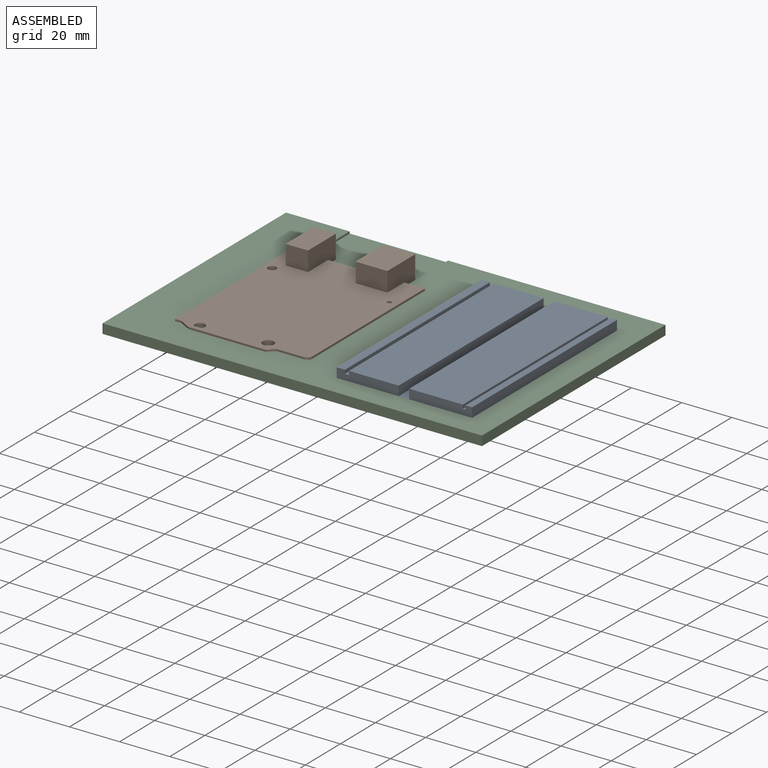
[diagram: assembled view]
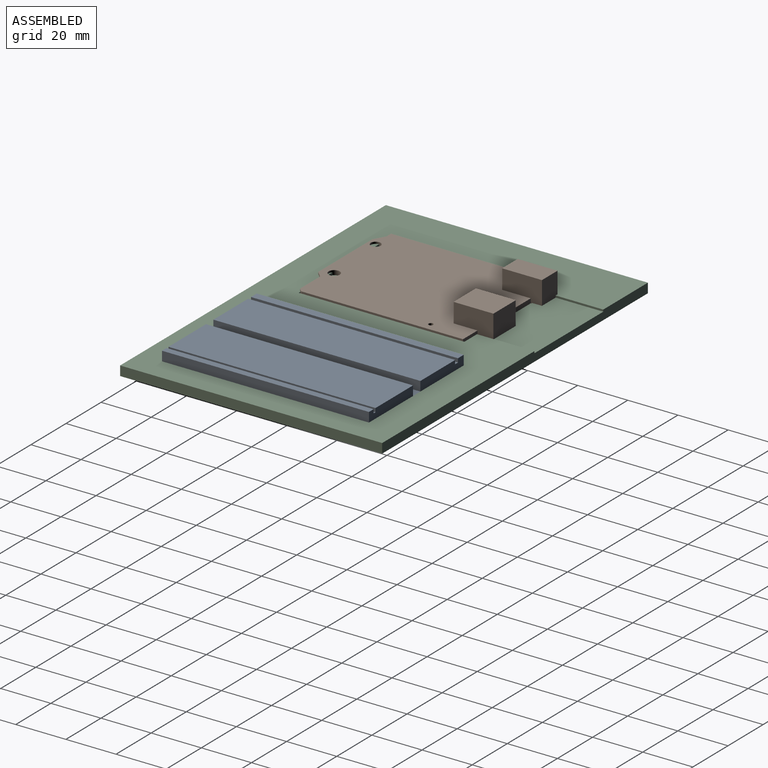
[diagram: assembled view, second angle]
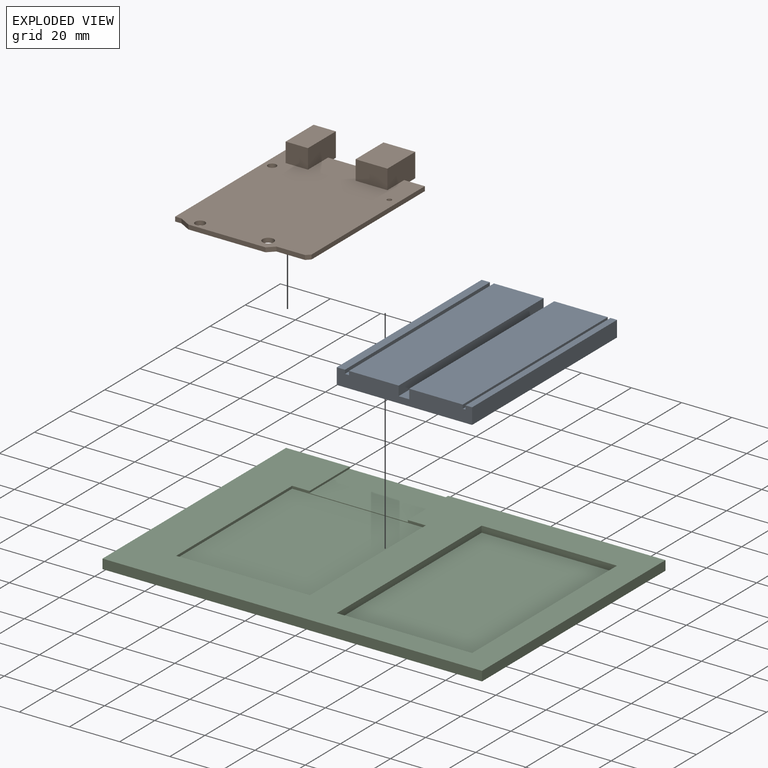
[diagram: exploded view]
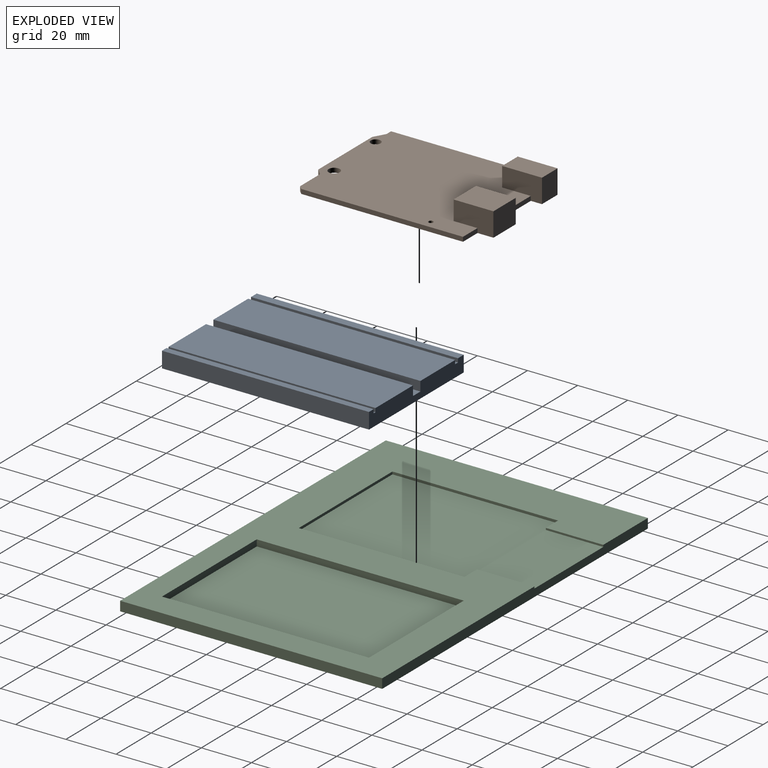
[diagram: exploded view, second angle]
ASSEMBLY  parts=3 mates=2
PART A: 18 faces, bbox 54x82.6x6.4 mm
  f0: plane 82.55x21.36mm, normal (0,0,1), area 1763.5mm2, adj f1,f2,f9,f16
  f1: plane 53.98x6.35mm, normal (0,-1,0), area 322.6mm2, adj f0,f3,f4,f5,f6,f7,f8,f9
  f2: plane 53.98x6.35mm, normal (0,1,0), area 322.6mm2, adj f0,f3,f4,f5,f6,f7,f8,f9
  f3: plane 82.55x3.28mm, normal (0,0,1), area 270.8mm2, adj f1,f2,f5,f13
  f4: plane 82.55x19.8mm, normal (0,0,1), area 1634.8mm2, adj f1,f2,f10,f12
  f5: plane 82.55x6.35mm, normal (1,0,0), area 524.2mm2, adj f1,f2,f3,f8
  f6: plane 82.55x6.35mm, normal (-1,0,0), area 524.2mm2, adj f1,f2,f7,f8
  f7: plane 82.55x2.62mm, normal (0,0,1), area 216.1mm2, adj f1,f2,f6,f15
  f8: plane 82.55x53.98mm, normal (0,0,-1), area 4455.6mm2, adj f1,f2,f5,f6
  f9: plane 82.55x3.81mm, normal (1,0,0), area 314.5mm2, adj f0,f1,f2,f11
  f10: plane 82.55x3.81mm, normal (-1,0,0), area 314.5mm2, adj f1,f2,f4,f11
  f11: plane 82.55x4.22mm, normal (0,0,1), area 348.2mm2, adj f1,f2,f9,f10
  f12: plane 82.55x1.52mm, normal (1,0,0), area 125.8mm2, adj f1,f2,f4,f14
  f13: plane 82.55x1.52mm, normal (-1,0,0), area 125.8mm2, adj f1,f2,f3,f14
  f14: plane 82.55x1.6mm, normal (0,0,1), area 132.4mm2, adj f1,f2,f12,f13
  f15: plane 82.55x1.52mm, normal (1,0,0), area 125.8mm2, adj f1,f2,f7,f17
  f16: plane 82.55x1.52mm, normal (-1,0,0), area 125.8mm2, adj f0,f1,f2,f17
  f17: plane 82.55x1.09mm, normal (0,0,1), area 89.9mm2, adj f1,f2,f15,f16
PART B: 27 faces, bbox 74.9x53.3x9.5 mm
  f0: plane 5.85x1.78mm, normal (-1,0,0), area 10.4mm2, adj f4,f15,f16,f23
  f1: plane 17.64x1.78mm, normal (-1,0,0), area 31.4mm2, adj f15,f16,f18,f22
  f2: plane 64.52x1.78mm, normal (0,1,0), area 114.7mm2, adj f3,f13,f15,f16
  f3: plane 8.26x1.78mm, normal (-1,0,0), area 14.7mm2, adj f2,f15,f16,f17
  f4: plane 66.04x1.78mm, normal (0,-1,0), area 117.4mm2, adj f0,f5,f15,f16
  f5: plane 2.54x1.78mm, normal (1,0,0), area 4.5mm2, adj f4,f6,f15,f16
  f6: plane 4.52x2.54mm, normal (0.87,-0.49,0), area 9.2mm2, adj f5,f7,f15,f16
  f7: plane 30.79x1.78mm, normal (1,0,0), area 54.7mm2, adj f6,f8,f15,f16
  f8: plane 2.54x2.54mm, normal (0.71,0.71,0), area 6.4mm2, adj f7,f9,f15,f16
  f9: plane 11.43x1.78mm, normal (1,0,0), area 20.3mm2, adj f8,f13,f15,f16
  f10: cylinder r=1.68mm len=3.35mm, axis (0,0,-1), area 18.7mm2, adj f15,f16
  f11: cylinder r=0.91mm len=1.83mm, axis (0,0,-1), area 10.2mm2, adj f15,f16
  f12: cylinder r=2.22mm len=4.45mm, axis (0,0,-1), area 24.8mm2, adj f15,f16
  f13: plane 1.78x1.52mm, normal (0.71,0.71,0), area 3.8mm2, adj f2,f9,f15,f16
  f14: cylinder r=1.96mm len=3.93mm, axis (0,0,-1), area 21.9mm2, adj f15,f16
  f15: plane 68.58x53.34mm, normal (0,0,1), area 3346.9mm2, adj f0,f1,f2,f3,f4,f5,f6,f7
  f16: plane 74.93x53.34mm, normal (0,0,-1), area 3689.6mm2, adj f0,f1,f2,f3,f4,f5,f6,f7
  f17: plane 15.88x9.53mm, normal (0,1,0), area 134.3mm2, adj f3,f15,f16,f19,f20,f21
  f18: plane 15.88x9.53mm, normal (0,-1,0), area 134.3mm2, adj f1,f15,f16,f19,f20,f21
  f19: plane 12.7x9.53mm, normal (-1,0,0), area 121mm2, adj f16,f17,f18,f21
  f20: plane 12.7x7.75mm, normal (1,0,0), area 98.4mm2, adj f15,f17,f18,f21
  f21: plane 15.88x12.7mm, normal (0,0,1), area 201.6mm2, adj f17,f18,f19,f20
  f22: plane 15.88x9.53mm, normal (0,1,0), area 130.9mm2, adj f1,f15,f16,f24,f25,f26
  f23: plane 15.88x9.53mm, normal (0,-1,0), area 130.9mm2, adj f0,f15,f16,f24,f25,f26
  f24: plane 9.53x8.89mm, normal (-1,0,0), area 84.7mm2, adj f16,f22,f23,f26
  f25: plane 8.89x7.75mm, normal (1,0,0), area 68.9mm2, adj f15,f22,f23,f26
  f26: plane 15.88x8.89mm, normal (0,0,1), area 141.1mm2, adj f22,f23,f24,f25
PART C: 19 faces, bbox 151.3x104.5x3.8 mm
  f0: plane 151.31x104.5mm, normal (0,0,1), area 6935.4mm2, adj f1,f2,f3,f4,f5,f7,f8,f9
  f1: plane 151.31x3.81mm, normal (0,1,0), area 546.6mm2, adj f0,f4,f5,f6,f11,f12,f13
  f2: plane 53.34x1.02mm, normal (0,-1,0), area 24.3mm2, adj f0,f7,f9,f10,f11,f12,f13
  f3: plane 151.31x3.81mm, normal (0,-1,0), area 576.5mm2, adj f0,f4,f5,f6
  f4: plane 104.5x3.81mm, normal (1,0,0), area 398.2mm2, adj f0,f1,f3,f6
  f5: plane 104.5x3.81mm, normal (-1,0,0), area 398.2mm2, adj f0,f1,f3,f6
  f6: plane 151.31x104.5mm, normal (0,0,-1), area 15812.5mm2, adj f1,f3,f4,f5
  f7: plane 66.04x1.02mm, normal (1,0,0), area 67.1mm2, adj f0,f2,f8,f10
  f8: plane 53.34x1.02mm, normal (0,1,0), area 54.2mm2, adj f0,f7,f9,f10
  f9: plane 66.04x1.02mm, normal (-1,0,0), area 67.1mm2, adj f0,f2,f8,f10
  f10: plane 66.04x53.34mm, normal (0,0,1), area 3522.6mm2, adj f2,f7,f8,f9
  f11: plane 22.91x0.76mm, normal (1,0,0), area 17.5mm2, adj f0,f1,f2,f13
  f12: plane 22.91x0.76mm, normal (-1,0,0), area 17.5mm2, adj f0,f1,f2,f13
  f13: plane 39.24x22.91mm, normal (0,0,1), area 898.9mm2, adj f1,f2,f11,f12
  f14: plane 53.98x2.54mm, normal (0,-1,0), area 137.1mm2, adj f0,f15,f17,f18
  f15: plane 82.55x2.54mm, normal (1,0,0), area 209.7mm2, adj f0,f14,f16,f18
  f16: plane 53.98x2.54mm, normal (0,1,0), area 137.1mm2, adj f0,f15,f17,f18
  f17: plane 82.55x2.54mm, normal (-1,0,0), area 209.7mm2, adj f0,f14,f16,f18
  f18: plane 82.55x53.98mm, normal (0,0,1), area 4455.6mm2, adj f14,f15,f16,f17
PLACE A rot(axis=(0,0,1),180deg) t=(98.1,166.9,-52.82)mm
PLACE B rot(axis=(0,0,-1),90deg) t=(54.12,202.23,-51.29)mm
PLACE C t=(46.97,170.3,-54.09)mm
MATE fastened C.f10 <-> B.f16  axis (0,0,1) through (27.47,169.76,-51.29)mm
MATE fastened C.f18 <-> A.f8  axis (0,0,1) through (96.18,171.8,-52.82)mm
